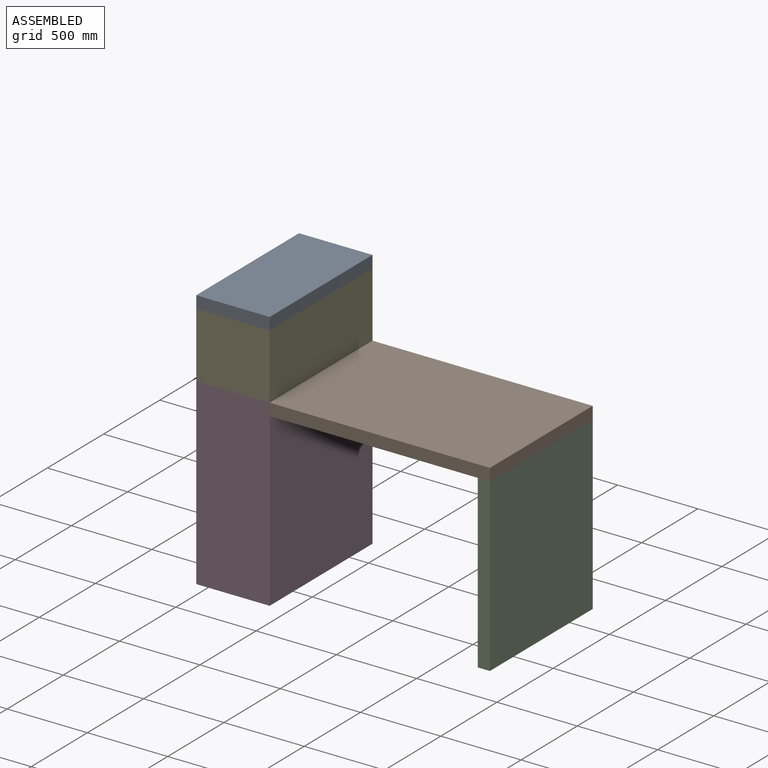
[diagram: assembled view]
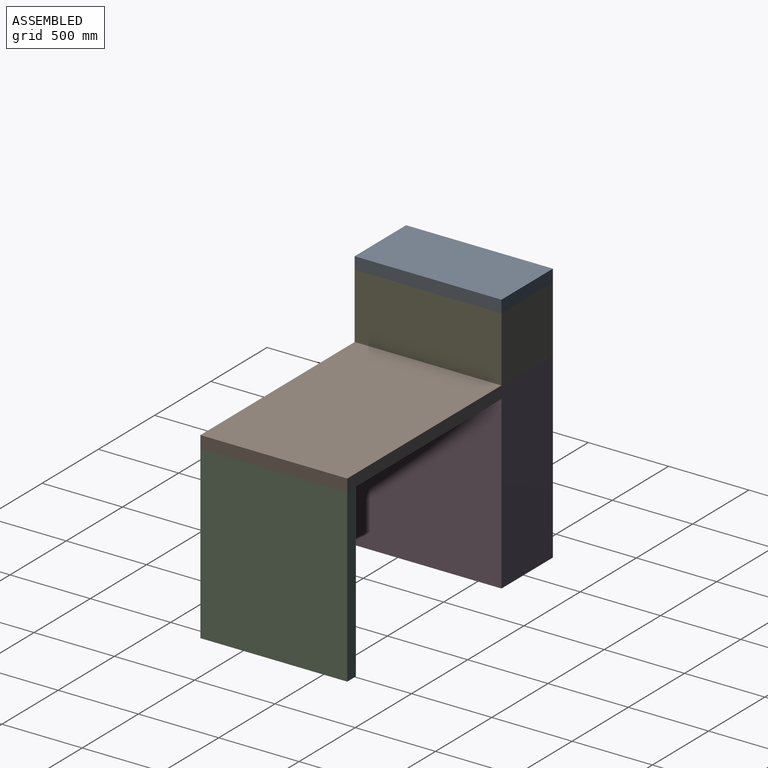
[diagram: assembled view, second angle]
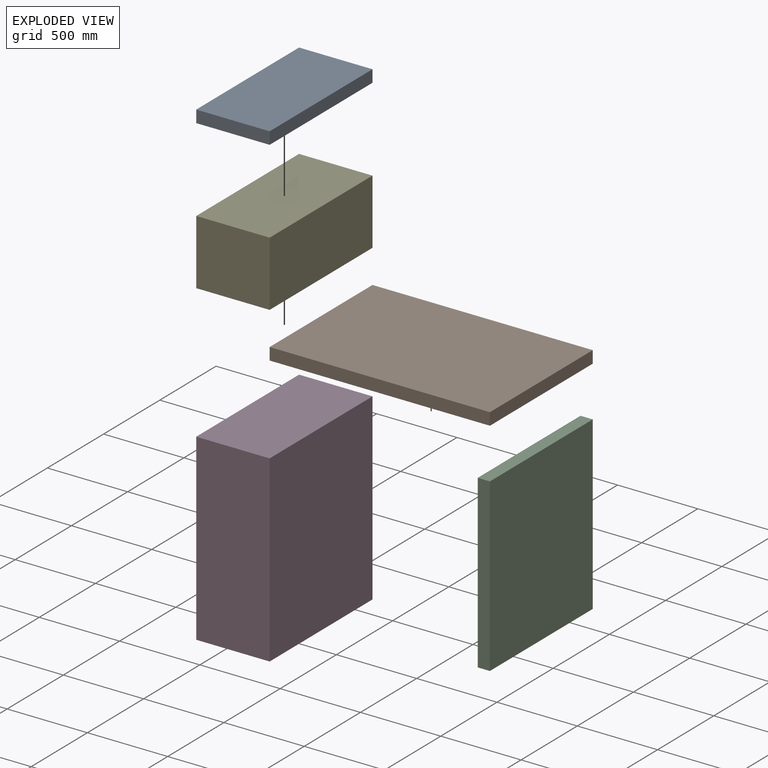
[diagram: exploded view]
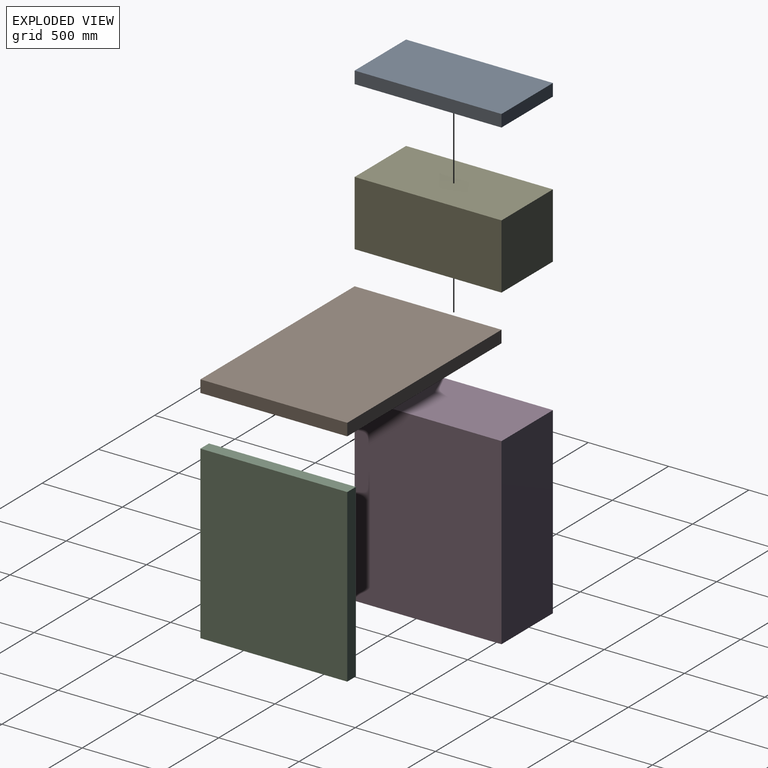
[diagram: exploded view, second angle]
ASSEMBLY  parts=5 mates=4
PART A: 6 faces, bbox 457.2x914.4x76.2 mm
  f0: plane 457.2x76.2mm, normal (0,1,0), area 34838.6mm2, adj f1,f3,f4,f5
  f1: plane 914.4x76.2mm, normal (-1,0,0), area 69677.3mm2, adj f0,f2,f4,f5
  f2: plane 457.2x76.2mm, normal (0,-1,0), area 34838.6mm2, adj f1,f3,f4,f5
  f3: plane 914.4x76.2mm, normal (1,0,0), area 69677.3mm2, adj f0,f2,f4,f5
  f4: plane 914.4x457.2mm, normal (0,0,1), area 418063.7mm2, adj f0,f1,f2,f3
  f5: plane 914.4x457.2mm, normal (0,0,-1), area 418063.7mm2, adj f0,f1,f2,f3
PART B: 6 faces, bbox 1371.6x914.4x76.2 mm
  f0: plane 1371.6x76.2mm, normal (0,1,0), area 104515.9mm2, adj f2,f3,f4,f5
  f1: plane 1371.6x76.2mm, normal (0,-1,0), area 104515.9mm2, adj f2,f3,f4,f5
  f2: plane 1371.6x914.4mm, normal (0,0,1), area 1254191mm2, adj f0,f1,f4,f5
  f3: plane 1371.6x914.4mm, normal (0,0,-1), area 1254191mm2, adj f0,f1,f4,f5
  f4: plane 914.4x76.2mm, normal (1,0,0), area 69677.3mm2, adj f0,f1,f2,f3
  f5: plane 914.4x76.2mm, normal (-1,0,0), area 69677.3mm2, adj f0,f1,f2,f3
PART C: 6 faces, bbox 76.2x914.4x1066.8 mm
  f0: plane 1066.8x76.2mm, normal (0,1,0), area 81290.2mm2, adj f1,f3,f4,f5
  f1: plane 1066.8x914.4mm, normal (-1,0,0), area 975481.9mm2, adj f0,f2,f4,f5
  f2: plane 1066.8x76.2mm, normal (0,-1,0), area 81290.2mm2, adj f1,f3,f4,f5
  f3: plane 1066.8x914.4mm, normal (1,0,0), area 975481.9mm2, adj f0,f2,f4,f5
  f4: plane 914.4x76.2mm, normal (0,0,1), area 69677.3mm2, adj f0,f1,f2,f3
  f5: plane 914.4x76.2mm, normal (0,0,-1), area 69677.3mm2, adj f0,f1,f2,f3
PART D: 6 faces, bbox 457.2x914.4x1143 mm
  f0: plane 1143x457.2mm, normal (0,1,0), area 522579.6mm2, adj f1,f3,f4,f5
  f1: plane 1143x914.4mm, normal (-1,0,0), area 1045159.2mm2, adj f0,f2,f4,f5
  f2: plane 1143x457.2mm, normal (0,-1,0), area 522579.6mm2, adj f1,f3,f4,f5
  f3: plane 1143x914.4mm, normal (1,0,0), area 1045159.2mm2, adj f0,f2,f4,f5
  f4: plane 914.4x457.2mm, normal (0,0,1), area 418063.7mm2, adj f0,f1,f2,f3
  f5: plane 914.4x457.2mm, normal (0,0,-1), area 418063.7mm2, adj f0,f1,f2,f3
PART E: 6 faces, bbox 457.2x914.4x406.4 mm
  f0: plane 457.2x406.4mm, normal (0,1,0), area 185806.1mm2, adj f1,f3,f4,f5
  f1: plane 914.4x406.4mm, normal (-1,0,0), area 371612.2mm2, adj f0,f2,f4,f5
  f2: plane 457.2x406.4mm, normal (0,-1,0), area 185806.1mm2, adj f1,f3,f4,f5
  f3: plane 914.4x406.4mm, normal (1,0,0), area 371612.2mm2, adj f0,f2,f4,f5
  f4: plane 914.4x457.2mm, normal (0,0,1), area 418063.7mm2, adj f0,f1,f2,f3
  f5: plane 914.4x457.2mm, normal (0,0,-1), area 418063.7mm2, adj f0,f1,f2,f3
PLACE A t=(-887.54,37.26,263.12)mm
PLACE B t=(-342.76,-18.54,-219.48)mm
PLACE C t=(1182.92,144.64,-1286.28)mm
PLACE D t=(-906.97,-83.9,-1286.28)mm
PLACE E t=(-934.18,92.08,-143.28)mm
MATE fastened E.f5 <-> D.f4  axis (0,0,-1) through (-911.56,125.32,-143.28)mm
MATE fastened B.f5 <-> D.f3  axis (-1,0,0) through (-682.96,125.32,-143.28)mm
MATE fastened C.f4 <-> B.f3  axis (0,0,1) through (688.64,-331.88,-219.48)mm
MATE fastened A.f5 <-> E.f4  axis (0,0,-1) through (-911.56,125.32,263.12)mm
